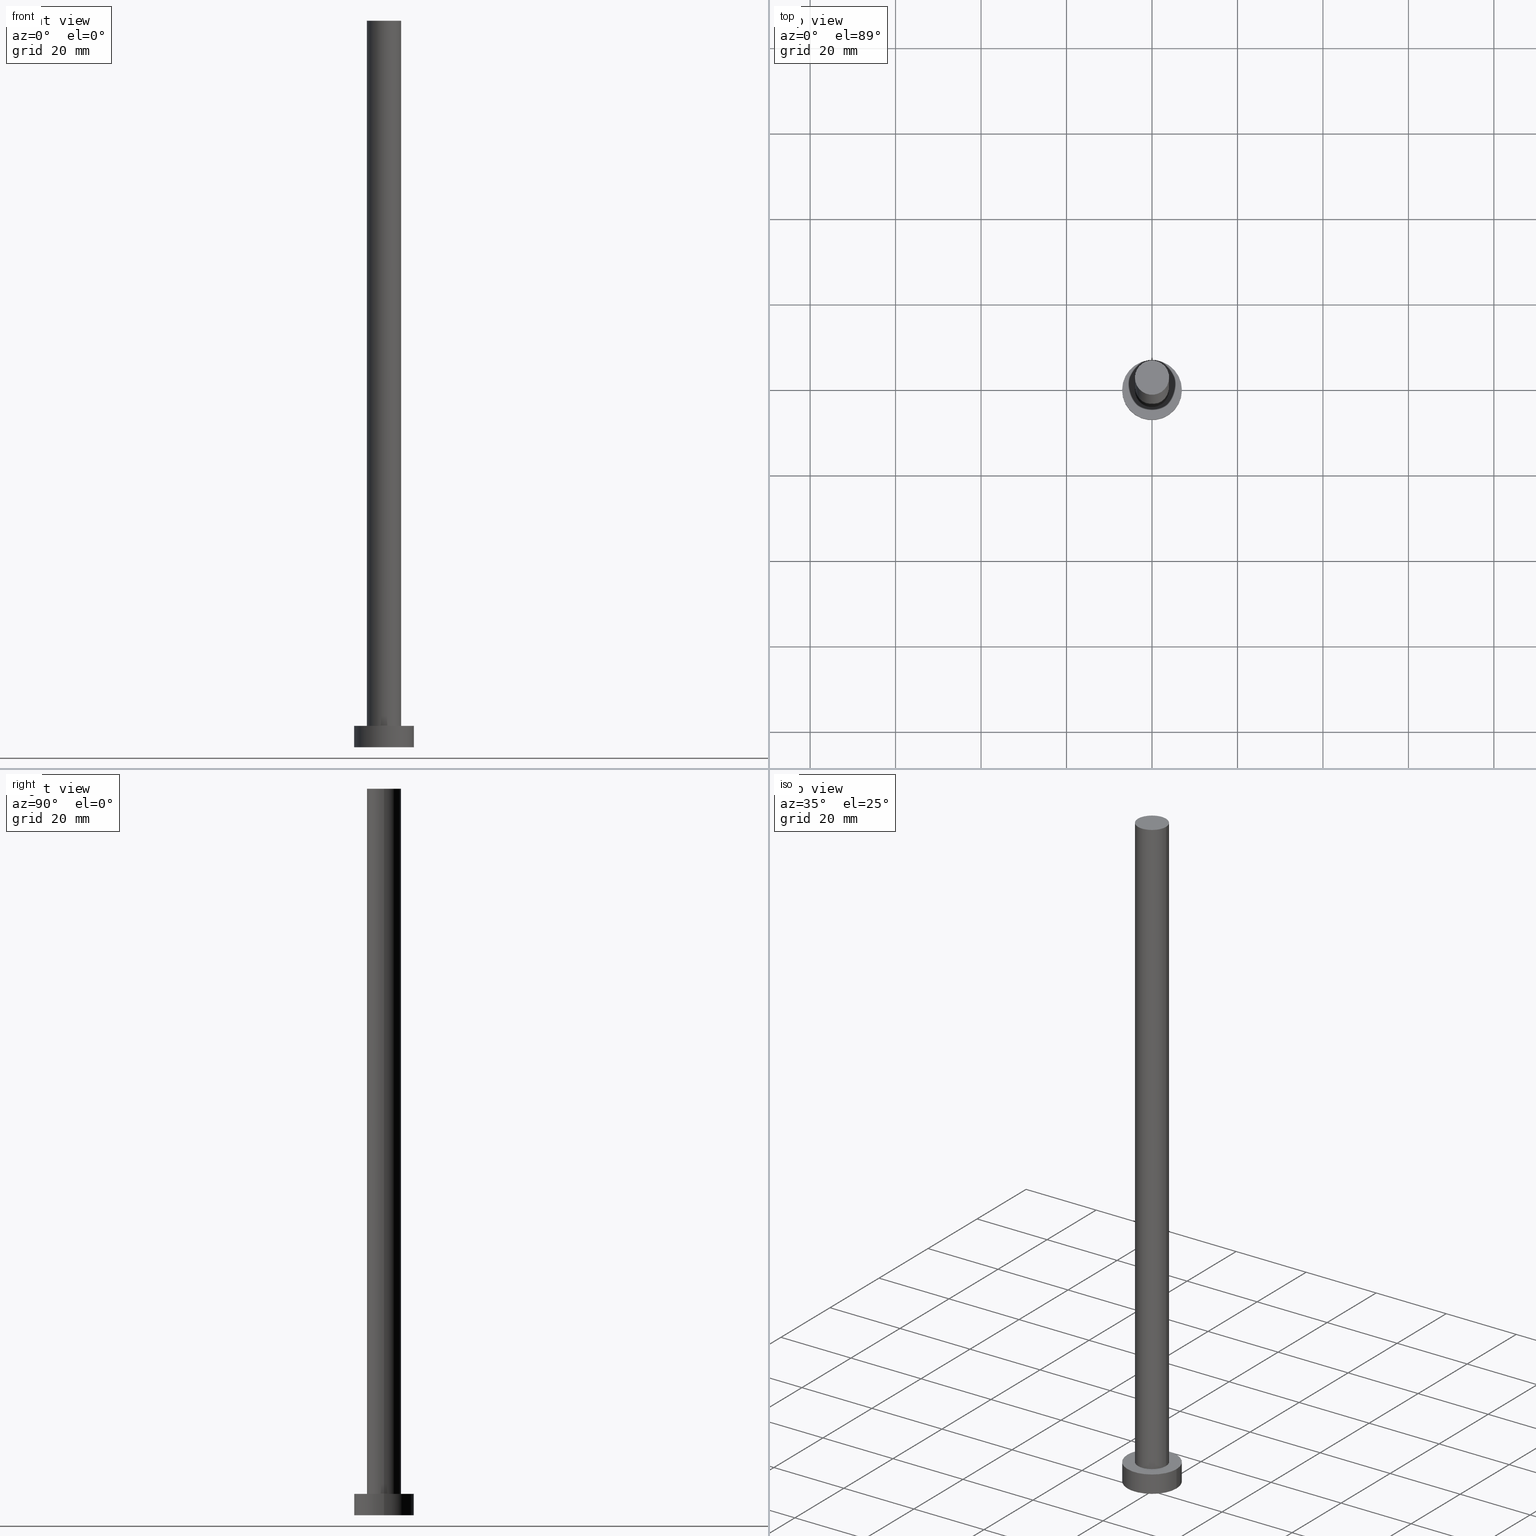
[diagram: canonical four-view strip — front | top / right | iso, engineering-drawing reading convention]
A machine part, canonical four-view strip (front | top / right | iso — engineering-drawing reading convention). The complete STEP part file that produces these views, byte-faithful:
ISO-10303-21;
HEADER;
FILE_DESCRIPTION (( 'STEP AP203' ),
    '1' );
FILE_NAME ('d437.STEP',
    '2023-10-18T15:06:47',
    ( '' ),
    ( '' ),
    'SwSTEP 2.0',
    'SolidWorks 2019',
    '' );
FILE_SCHEMA (( 'CONFIG_CONTROL_DESIGN' ));
ENDSEC;

DATA;
#1 = LINE ( 'NONE', #238, #43 ) ;
#2 = CARTESIAN_POINT ( 'NONE',  ( -7.000000000000000000, 0.000000000000000000, 0.000000000000000000 ) ) ;
#3 = DIRECTION ( 'NONE',  ( -0.000000000000000000, -0.000000000000000000, -1.000000000000000000 ) ) ;
#4 = CIRCLE ( 'NONE', #145, 7.000000000000000000 ) ;
#5 = EDGE_CURVE ( 'NONE', #251, #98, #217, .T. ) ;
#6 = PERSON_AND_ORGANIZATION_ROLE ( 'design_supplier' ) ;
#7 = COORDINATED_UNIVERSAL_TIME_OFFSET ( 1, 0, .AHEAD. ) ;
#8 = AXIS2_PLACEMENT_3D ( 'NONE', #219, #35, #117 ) ;
#9 = EDGE_CURVE ( 'NONE', #97, #39, #63, .T. ) ;
#10 = DATE_AND_TIME ( #56, #134 ) ;
#11 = VERTEX_POINT ( 'NONE', #116 ) ;
#12 = ADVANCED_BREP_SHAPE_REPRESENTATION ( 'd437', ( #158, #168 ), #28 ) ;
#13 = ORIENTED_EDGE ( 'NONE', *, *, #160, .F. ) ;
#14 = ORIENTED_EDGE ( 'NONE', *, *, #57, .T. ) ;
#15 = LOCAL_TIME ( 17, 6, 47.00000000000000000, #7 ) ;
#16 = AXIS2_PLACEMENT_3D ( 'NONE', #86, #141, #243 ) ;
#17 = CYLINDRICAL_SURFACE ( 'NONE', #191, 7.000000000000000000 ) ;
#18 = DIRECTION ( 'NONE',  ( 0.000000000000000000, 0.000000000000000000, 1.000000000000000000 ) ) ;
#19 = CARTESIAN_POINT ( 'NONE',  ( 0.000000000000000000, 0.000000000000000000, 5.000000000000000000 ) ) ;
#20 = DIRECTION ( 'NONE',  ( 0.000000000000000000, 0.000000000000000000, 1.000000000000000000 ) ) ;
#21 = CARTESIAN_POINT ( 'NONE',  ( 0.000000000000000000, 0.000000000000000000, 0.000000000000000000 ) ) ;
#22 = CLOSED_SHELL ( 'NONE', ( #96, #27, #71, #225, #241, #60, #185 ) ) ;
#23 = FACE_OUTER_BOUND ( 'NONE', #197, .T. ) ;
#24 = SECURITY_CLASSIFICATION_LEVEL ( 'unclassified' ) ;
#25 = APPLICATION_CONTEXT ( 'configuration controlled 3d designs of mechanical parts and assemblies' ) ;
#26 = PERSON_AND_ORGANIZATION ( #253, #68 ) ;
#27 = ADVANCED_FACE ( 'NONE', ( #83 ), #17, .T. ) ;
#28 =( GEOMETRIC_REPRESENTATION_CONTEXT ( 3 ) GLOBAL_UNCERTAINTY_ASSIGNED_CONTEXT ( ( #188 ) ) GLOBAL_UNIT_ASSIGNED_CONTEXT ( ( #193, #211, #172 ) ) REPRESENTATION_CONTEXT ( 'NONE', 'WORKASPACE' ) );
#29 = CIRCLE ( 'NONE', #16, 4.000000000000000000 ) ;
#30 = PERSON_AND_ORGANIZATION ( #253, #68 ) ;
#31 = DIRECTION ( 'NONE',  ( 0.000000000000000000, 0.000000000000000000, 1.000000000000000000 ) ) ;
#32 = VERTEX_POINT ( 'NONE', #216 ) ;
#33 = ORIENTED_EDGE ( 'NONE', *, *, #80, .T. ) ;
#34 = APPROVAL_DATE_TIME ( #130, #147 ) ;
#35 = DIRECTION ( 'NONE',  ( 0.000000000000000000, 0.000000000000000000, 1.000000000000000000 ) ) ;
#36 = PRODUCT_DEFINITION_SHAPE ( 'NONE', 'NONE',  #220 ) ;
#37 = APPROVAL ( #246, 'NEUR�EN�' ) ;
#38 = ORIENTED_EDGE ( 'NONE', *, *, #235, .T. ) ;
#39 = VERTEX_POINT ( 'NONE', #200 ) ;
#40 = DIRECTION ( 'NONE',  ( 1.000000000000000000, 0.000000000000000000, -0.000000000000000000 ) ) ;
#41 = LINE ( 'NONE', #204, #78 ) ;
#42 = VECTOR ( 'NONE', #67, 1000.000000000000000 ) ;
#43 = VECTOR ( 'NONE', #87, 1000.000000000000000 ) ;
#44 = CC_DESIGN_SECURITY_CLASSIFICATION ( #108, ( #224 ) ) ;
#45 = CARTESIAN_POINT ( 'NONE',  ( 0.000000000000000000, 0.000000000000000000, 5.000000000000000000 ) ) ;
#46 = DIRECTION ( 'NONE',  ( 1.000000000000000000, 0.000000000000000000, 0.000000000000000000 ) ) ;
#47 = CC_DESIGN_DATE_AND_TIME_ASSIGNMENT ( #148, #94, ( #108 ) ) ;
#48 = CARTESIAN_POINT ( 'NONE',  ( 0.000000000000000000, 0.000000000000000000, 170.0000000000000000 ) ) ;
#49 = AXIS2_PLACEMENT_3D ( 'NONE', #59, #99, #215 ) ;
#50 = COORDINATED_UNIVERSAL_TIME_OFFSET ( 1, 0, .AHEAD. ) ;
#51 = CIRCLE ( 'NONE', #157, 7.000000000000000000 ) ;
#52 = APPROVAL_DATE_TIME ( #208, #37 ) ;
#53 = COORDINATED_UNIVERSAL_TIME_OFFSET ( 1, 0, .AHEAD. ) ;
#54 = APPLICATION_PROTOCOL_DEFINITION ( 'international standard', 'config_control_design', 1994, #25 ) ;
#55 = PRODUCT ( 'd437', 'd437', '', ( #77 ) ) ;
#56 = CALENDAR_DATE ( 2023, 18, 10 ) ;
#57 = EDGE_CURVE ( 'NONE', #32, #79, #232, .T. ) ;
#58 = ORIENTED_EDGE ( 'NONE', *, *, #137, .T. ) ;
#59 = CARTESIAN_POINT ( 'NONE',  ( 0.000000000000000000, 0.000000000000000000, 5.000000000000000000 ) ) ;
#60 = ADVANCED_FACE ( 'NONE', ( #105 ), #206, .T. ) ;
#61 = DIRECTION ( 'NONE',  ( -0.000000000000000000, -0.000000000000000000, -1.000000000000000000 ) ) ;
#62 = EDGE_LOOP ( 'NONE', ( #233, #118, #236, #212 ) ) ;
#63 = CIRCLE ( 'NONE', #8, 4.000000000000000000 ) ;
#64 = APPROVAL_PERSON_ORGANIZATION ( #166, #147, #170 ) ;
#65 = DIRECTION ( 'NONE',  ( 0.000000000000000000, 0.000000000000000000, 1.000000000000000000 ) ) ;
#66 = CARTESIAN_POINT ( 'NONE',  ( 0.000000000000000000, 0.000000000000000000, 5.000000000000000000 ) ) ;
#67 = DIRECTION ( 'NONE',  ( -0.000000000000000000, -0.000000000000000000, -1.000000000000000000 ) ) ;
#68 = ORGANIZATION ( 'NEUR�EN�', 'NEUR�EN�', '' ) ;
#69 = APPLICATION_CONTEXT ( 'configuration controlled 3d designs of mechanical parts and assemblies' ) ;
#70 = FACE_OUTER_BOUND ( 'NONE', #151, .T. ) ;
#71 = ADVANCED_FACE ( 'NONE', ( #85 ), #156, .T. ) ;
#72 = DIRECTION ( 'NONE',  ( 1.000000000000000000, 0.000000000000000000, 0.000000000000000000 ) ) ;
#73 = APPROVAL_ROLE ( '' ) ;
#74 = CALENDAR_DATE ( 2023, 18, 10 ) ;
#75 = PERSON_AND_ORGANIZATION ( #253, #68 ) ;
#76 = CALENDAR_DATE ( 2023, 18, 10 ) ;
#77 = MECHANICAL_CONTEXT ( 'NONE', #25, 'mechanical' ) ;
#78 = VECTOR ( 'NONE', #159, 1000.000000000000000 ) ;
#79 = VERTEX_POINT ( 'NONE', #202 ) ;
#80 = EDGE_CURVE ( 'NONE', #98, #132, #1, .T. ) ;
#81 = ORIENTED_EDGE ( 'NONE', *, *, #128, .F. ) ;
#82 = CIRCLE ( 'NONE', #250, 7.000000000000000000 ) ;
#83 = FACE_OUTER_BOUND ( 'NONE', #114, .T. ) ;
#84 = EDGE_LOOP ( 'NONE', ( #248, #115 ) ) ;
#85 = FACE_OUTER_BOUND ( 'NONE', #234, .T. ) ;
#86 = CARTESIAN_POINT ( 'NONE',  ( 0.000000000000000000, 0.000000000000000000, 5.000000000000000000 ) ) ;
#87 = DIRECTION ( 'NONE',  ( -0.000000000000000000, -0.000000000000000000, -1.000000000000000000 ) ) ;
#88 = LINE ( 'NONE', #162, #195 ) ;
#89 = EDGE_CURVE ( 'NONE', #132, #11, #82, .T. ) ;
#90 = CC_DESIGN_APPROVAL ( #147, ( #108 ) ) ;
#91 = DIRECTION ( 'NONE',  ( 0.000000000000000000, 0.000000000000000000, 1.000000000000000000 ) ) ;
#92 = PERSON_AND_ORGANIZATION ( #253, #68 ) ;
#93 = APPROVAL_STATUS ( 'not_yet_approved' ) ;
#94 = DATE_TIME_ROLE ( 'classification_date' ) ;
#95 = APPLICATION_PROTOCOL_DEFINITION ( 'international standard', 'config_control_design', 1994, #69 ) ;
#96 = ADVANCED_FACE ( 'NONE', ( #23 ), #109, .T. ) ;
#97 = VERTEX_POINT ( 'NONE', #254 ) ;
#98 = VERTEX_POINT ( 'NONE', #222 ) ;
#99 = DIRECTION ( 'NONE',  ( 0.000000000000000000, 0.000000000000000000, 1.000000000000000000 ) ) ;
#100 = CARTESIAN_POINT ( 'NONE',  ( 0.000000000000000000, 0.000000000000000000, 5.000000000000000000 ) ) ;
#101 = CC_DESIGN_PERSON_AND_ORGANIZATION_ASSIGNMENT ( #189, #167, ( #108 ) ) ;
#102 = CARTESIAN_POINT ( 'NONE',  ( 0.000000000000000000, 0.000000000000000000, 0.000000000000000000 ) ) ;
#103 = AXIS2_PLACEMENT_3D ( 'NONE', #66, #3, #122 ) ;
#104 = LOCAL_TIME ( 17, 6, 47.00000000000000000, #50 ) ;
#105 = FACE_OUTER_BOUND ( 'NONE', #62, .T. ) ;
#106 = PLANE ( 'NONE',  #218 ) ;
#107 = PLANE ( 'NONE',  #129 ) ;
#108 = SECURITY_CLASSIFICATION ( '', '', #24 ) ;
#109 = CYLINDRICAL_SURFACE ( 'NONE', #177, 4.000000000000000000 ) ;
#110 = CALENDAR_DATE ( 2023, 18, 10 ) ;
#111 = DATE_TIME_ROLE ( 'creation_date' ) ;
#112 = PERSON_AND_ORGANIZATION_ROLE ( 'creator' ) ;
#113 = DIRECTION ( 'NONE',  ( 1.000000000000000000, 0.000000000000000000, 0.000000000000000000 ) ) ;
#114 = EDGE_LOOP ( 'NONE', ( #247, #58, #149, #252 ) ) ;
#115 = ORIENTED_EDGE ( 'NONE', *, *, #5, .T. ) ;
#116 = CARTESIAN_POINT ( 'NONE',  ( 7.000000000000000000, 8.572527594031473190E-16, 0.000000000000000000 ) ) ;
#117 = DIRECTION ( 'NONE',  ( 1.000000000000000000, 0.000000000000000000, 0.000000000000000000 ) ) ;
#118 = ORIENTED_EDGE ( 'NONE', *, *, #9, .F. ) ;
#119 = CARTESIAN_POINT ( 'NONE',  ( 0.000000000000000000, 0.000000000000000000, 170.0000000000000000 ) ) ;
#120 = DIRECTION ( 'NONE',  ( 1.000000000000000000, 0.000000000000000000, 0.000000000000000000 ) ) ;
#121 = DIRECTION ( 'NONE',  ( 0.000000000000000000, 0.000000000000000000, 1.000000000000000000 ) ) ;
#122 = DIRECTION ( 'NONE',  ( -1.000000000000000000, 0.000000000000000000, 0.000000000000000000 ) ) ;
#123 = DIRECTION ( 'NONE',  ( -0.000000000000000000, -0.000000000000000000, -1.000000000000000000 ) ) ;
#124 = AXIS2_PLACEMENT_3D ( 'NONE', #45, #121, #182 ) ;
#125 = APPROVAL_DATE_TIME ( #10, #198 ) ;
#126 = CC_DESIGN_PERSON_AND_ORGANIZATION_ASSIGNMENT ( #171, #6, ( #224 ) ) ;
#127 = APPROVAL_ROLE ( '' ) ;
#128 = EDGE_CURVE ( 'NONE', #79, #32, #29, .T. ) ;
#129 = AXIS2_PLACEMENT_3D ( 'NONE', #184, #91, #142 ) ;
#130 = DATE_AND_TIME ( #231, #152 ) ;
#131 = PERSON_AND_ORGANIZATION ( #253, #68 ) ;
#132 = VERTEX_POINT ( 'NONE', #2 ) ;
#133 = ORIENTED_EDGE ( 'NONE', *, *, #194, .F. ) ;
#134 = LOCAL_TIME ( 17, 6, 47.00000000000000000, #146 ) ;
#135 = ORIENTED_EDGE ( 'NONE', *, *, #137, .F. ) ;
#136 = DIRECTION ( 'NONE',  ( -1.000000000000000000, 0.000000000000000000, 0.000000000000000000 ) ) ;
#137 = EDGE_CURVE ( 'NONE', #251, #11, #41, .T. ) ;
#138 = DIRECTION ( 'NONE',  ( 1.000000000000000000, 0.000000000000000000, 0.000000000000000000 ) ) ;
#139 = DIRECTION ( 'NONE',  ( -1.000000000000000000, 0.000000000000000000, 0.000000000000000000 ) ) ;
#140 = FACE_BOUND ( 'NONE', #213, .T. ) ;
#141 = DIRECTION ( 'NONE',  ( 0.000000000000000000, 0.000000000000000000, 1.000000000000000000 ) ) ;
#142 = DIRECTION ( 'NONE',  ( 1.000000000000000000, 0.000000000000000000, -0.000000000000000000 ) ) ;
#143 = CC_DESIGN_PERSON_AND_ORGANIZATION_ASSIGNMENT ( #131, #112, ( #224 ) ) ;
#144 = CARTESIAN_POINT ( 'NONE',  ( 0.000000000000000000, 0.000000000000000000, 0.000000000000000000 ) ) ;
#145 = AXIS2_PLACEMENT_3D ( 'NONE', #102, #203, #72 ) ;
#146 = COORDINATED_UNIVERSAL_TIME_OFFSET ( 1, 0, .AHEAD. ) ;
#147 = APPROVAL ( #230, 'NEUR�EN�' ) ;
#148 = DATE_AND_TIME ( #74, #199 ) ;
#149 = ORIENTED_EDGE ( 'NONE', *, *, #165, .T. ) ;
#150 = ORIENTED_EDGE ( 'NONE', *, *, #214, .F. ) ;
#151 = EDGE_LOOP ( 'NONE', ( #173, #178 ) ) ;
#152 = LOCAL_TIME ( 17, 6, 47.00000000000000000, #53 ) ;
#153 = SHAPE_DEFINITION_REPRESENTATION ( #36, #12 ) ;
#154 = CARTESIAN_POINT ( 'NONE',  ( 0.000000000000000000, 0.000000000000000000, 5.000000000000000000 ) ) ;
#155 = ORIENTED_EDGE ( 'NONE', *, *, #160, .T. ) ;
#156 = CYLINDRICAL_SURFACE ( 'NONE', #103, 7.000000000000000000 ) ;
#157 = AXIS2_PLACEMENT_3D ( 'NONE', #19, #65, #180 ) ;
#158 = MANIFOLD_SOLID_BREP ( 'P�idat vysunut�m3', #22 ) ;
#159 = DIRECTION ( 'NONE',  ( -0.000000000000000000, -0.000000000000000000, -1.000000000000000000 ) ) ;
#160 = EDGE_CURVE ( 'NONE', #39, #97, #176, .T. ) ;
#161 = CARTESIAN_POINT ( 'NONE',  ( -4.000000000000000000, 0.000000000000000000, 170.0000000000000000 ) ) ;
#162 = CARTESIAN_POINT ( 'NONE',  ( 4.000000000000000000, 4.898587196589412829E-16, 170.0000000000000000 ) ) ;
#163 = CC_DESIGN_APPROVAL ( #37, ( #220 ) ) ;
#164 = CARTESIAN_POINT ( 'NONE',  ( 0.000000000000000000, 0.000000000000000000, 170.0000000000000000 ) ) ;
#165 = EDGE_CURVE ( 'NONE', #11, #132, #4, .T. ) ;
#166 = PERSON_AND_ORGANIZATION ( #253, #68 ) ;
#167 = PERSON_AND_ORGANIZATION_ROLE ( 'classification_officer' ) ;
#168 = AXIS2_PLACEMENT_3D ( 'NONE', #144, #31, #113 ) ;
#169 = PRODUCT_RELATED_PRODUCT_CATEGORY ( 'detail', '', ( #55 ) ) ;
#170 = APPROVAL_ROLE ( '' ) ;
#171 = PERSON_AND_ORGANIZATION ( #253, #68 ) ;
#172 =( NAMED_UNIT ( * ) SI_UNIT ( $, .STERADIAN. ) SOLID_ANGLE_UNIT ( ) );
#173 = ORIENTED_EDGE ( 'NONE', *, *, #89, .F. ) ;
#174 = ORIENTED_EDGE ( 'NONE', *, *, #57, .F. ) ;
#175 = CC_DESIGN_PERSON_AND_ORGANIZATION_ASSIGNMENT ( #26, #209, ( #220 ) ) ;
#176 = CIRCLE ( 'NONE', #186, 4.000000000000000000 ) ;
#177 = AXIS2_PLACEMENT_3D ( 'NONE', #187, #239, #139 ) ;
#178 = ORIENTED_EDGE ( 'NONE', *, *, #165, .F. ) ;
#179 = DIRECTION ( 'NONE',  ( 0.000000000000000000, 0.000000000000000000, 1.000000000000000000 ) ) ;
#180 = DIRECTION ( 'NONE',  ( 1.000000000000000000, 0.000000000000000000, 0.000000000000000000 ) ) ;
#181 = DIRECTION ( 'NONE',  ( -1.000000000000000000, 0.000000000000000000, 0.000000000000000000 ) ) ;
#182 = DIRECTION ( 'NONE',  ( 1.000000000000000000, 0.000000000000000000, -0.000000000000000000 ) ) ;
#183 = DESIGN_CONTEXT ( 'detailed design', #69, 'design' ) ;
#184 = CARTESIAN_POINT ( 'NONE',  ( 0.000000000000000000, 0.000000000000000000, 0.000000000000000000 ) ) ;
#185 = ADVANCED_FACE ( 'NONE', ( #205 ), #106, .T. ) ;
#186 = AXIS2_PLACEMENT_3D ( 'NONE', #119, #20, #120 ) ;
#187 = CARTESIAN_POINT ( 'NONE',  ( 0.000000000000000000, 0.000000000000000000, 170.0000000000000000 ) ) ;
#188 = UNCERTAINTY_MEASURE_WITH_UNIT (LENGTH_MEASURE( 1.000000000000000082E-05 ), #193, 'distance_accuracy_value', 'NONE');
#189 = PERSON_AND_ORGANIZATION ( #253, #68 ) ;
#190 = APPROVAL_PERSON_ORGANIZATION ( #92, #37, #127 ) ;
#191 = AXIS2_PLACEMENT_3D ( 'NONE', #154, #61, #136 ) ;
#192 = DATE_AND_TIME ( #110, #104 ) ;
#193 =( LENGTH_UNIT ( ) NAMED_UNIT ( * ) SI_UNIT ( .MILLI., .METRE. ) );
#194 = EDGE_CURVE ( 'NONE', #98, #251, #51, .T. ) ;
#195 = VECTOR ( 'NONE', #242, 1000.000000000000000 ) ;
#196 = ORIENTED_EDGE ( 'NONE', *, *, #89, .T. ) ;
#197 = EDGE_LOOP ( 'NONE', ( #13, #38, #14, #150 ) ) ;
#198 = APPROVAL ( #93, 'NEUR�EN�' ) ;
#199 = LOCAL_TIME ( 17, 6, 47.00000000000000000, #244 ) ;
#200 = CARTESIAN_POINT ( 'NONE',  ( 4.000000000000000000, 4.898587196589412829E-16, 170.0000000000000000 ) ) ;
#201 = EDGE_LOOP ( 'NONE', ( #237, #155 ) ) ;
#202 = CARTESIAN_POINT ( 'NONE',  ( -4.000000000000000000, 0.000000000000000000, 5.000000000000000000 ) ) ;
#203 = DIRECTION ( 'NONE',  ( 0.000000000000000000, 0.000000000000000000, 1.000000000000000000 ) ) ;
#204 = CARTESIAN_POINT ( 'NONE',  ( 7.000000000000000000, 8.572527594031473190E-16, 5.000000000000000000 ) ) ;
#205 = FACE_OUTER_BOUND ( 'NONE', #201, .T. ) ;
#206 = CYLINDRICAL_SURFACE ( 'NONE', #245, 4.000000000000000000 ) ;
#207 = AXIS2_PLACEMENT_3D ( 'NONE', #100, #179, #46 ) ;
#208 = DATE_AND_TIME ( #76, #15 ) ;
#209 = PERSON_AND_ORGANIZATION_ROLE ( 'creator' ) ;
#210 = CC_DESIGN_APPROVAL ( #198, ( #224 ) ) ;
#211 =( NAMED_UNIT ( * ) PLANE_ANGLE_UNIT ( ) SI_UNIT ( $, .RADIAN. ) );
#212 = ORIENTED_EDGE ( 'NONE', *, *, #128, .T. ) ;
#213 = EDGE_LOOP ( 'NONE', ( #81, #174 ) ) ;
#214 = EDGE_CURVE ( 'NONE', #97, #79, #240, .T. ) ;
#215 = DIRECTION ( 'NONE',  ( 1.000000000000000000, 0.000000000000000000, 0.000000000000000000 ) ) ;
#216 = CARTESIAN_POINT ( 'NONE',  ( 4.000000000000000000, 4.898587196589412829E-16, 5.000000000000000000 ) ) ;
#217 = CIRCLE ( 'NONE', #49, 7.000000000000000000 ) ;
#218 = AXIS2_PLACEMENT_3D ( 'NONE', #164, #18, #40 ) ;
#219 = CARTESIAN_POINT ( 'NONE',  ( 0.000000000000000000, 0.000000000000000000, 170.0000000000000000 ) ) ;
#220 = PRODUCT_DEFINITION ( 'NEZN�M�', '', #224, #183 ) ;
#221 = DIRECTION ( 'NONE',  ( 0.000000000000000000, 0.000000000000000000, 1.000000000000000000 ) ) ;
#222 = CARTESIAN_POINT ( 'NONE',  ( -7.000000000000000000, 0.000000000000000000, 5.000000000000000000 ) ) ;
#223 = PLANE ( 'NONE',  #124 ) ;
#224 = PRODUCT_DEFINITION_FORMATION_WITH_SPECIFIED_SOURCE ( 'LIBOVOLN�', '', #55, .NOT_KNOWN. ) ;
#225 = ADVANCED_FACE ( 'NONE', ( #140, #226 ), #223, .T. ) ;
#226 = FACE_OUTER_BOUND ( 'NONE', #84, .T. ) ;
#227 = CARTESIAN_POINT ( 'NONE',  ( 7.000000000000000000, 8.572527594031473190E-16, 5.000000000000000000 ) ) ;
#228 = PERSON_AND_ORGANIZATION_ROLE ( 'design_owner' ) ;
#229 = CC_DESIGN_DATE_AND_TIME_ASSIGNMENT ( #192, #111, ( #220 ) ) ;
#230 = APPROVAL_STATUS ( 'not_yet_approved' ) ;
#231 = CALENDAR_DATE ( 2023, 18, 10 ) ;
#232 = CIRCLE ( 'NONE', #207, 4.000000000000000000 ) ;
#233 = ORIENTED_EDGE ( 'NONE', *, *, #235, .F. ) ;
#234 = EDGE_LOOP ( 'NONE', ( #135, #133, #33, #196 ) ) ;
#235 = EDGE_CURVE ( 'NONE', #39, #32, #88, .T. ) ;
#236 = ORIENTED_EDGE ( 'NONE', *, *, #214, .T. ) ;
#237 = ORIENTED_EDGE ( 'NONE', *, *, #9, .T. ) ;
#238 = CARTESIAN_POINT ( 'NONE',  ( -7.000000000000000000, 0.000000000000000000, 5.000000000000000000 ) ) ;
#239 = DIRECTION ( 'NONE',  ( -0.000000000000000000, -0.000000000000000000, -1.000000000000000000 ) ) ;
#240 = LINE ( 'NONE', #161, #42 ) ;
#241 = ADVANCED_FACE ( 'NONE', ( #70 ), #107, .F. ) ;
#242 = DIRECTION ( 'NONE',  ( -0.000000000000000000, -0.000000000000000000, -1.000000000000000000 ) ) ;
#243 = DIRECTION ( 'NONE',  ( 1.000000000000000000, 0.000000000000000000, 0.000000000000000000 ) ) ;
#244 = COORDINATED_UNIVERSAL_TIME_OFFSET ( 1, 0, .AHEAD. ) ;
#245 = AXIS2_PLACEMENT_3D ( 'NONE', #48, #123, #181 ) ;
#246 = APPROVAL_STATUS ( 'not_yet_approved' ) ;
#247 = ORIENTED_EDGE ( 'NONE', *, *, #5, .F. ) ;
#248 = ORIENTED_EDGE ( 'NONE', *, *, #194, .T. ) ;
#249 = APPROVAL_PERSON_ORGANIZATION ( #30, #198, #73 ) ;
#250 = AXIS2_PLACEMENT_3D ( 'NONE', #21, #221, #138 ) ;
#251 = VERTEX_POINT ( 'NONE', #227 ) ;
#252 = ORIENTED_EDGE ( 'NONE', *, *, #80, .F. ) ;
#253 = PERSON ( 'NEUR�EN�', 'NEUR�EN�', 'NEUR�EN�', ('NEUR�EN�'), ('NEUR�EN�'), ('NEUR�EN�') ) ;
#254 = CARTESIAN_POINT ( 'NONE',  ( -4.000000000000000000, 0.000000000000000000, 170.0000000000000000 ) ) ;
#255 = CC_DESIGN_PERSON_AND_ORGANIZATION_ASSIGNMENT ( #75, #228, ( #55 ) ) ;
ENDSEC;
END-ISO-10303-21;
